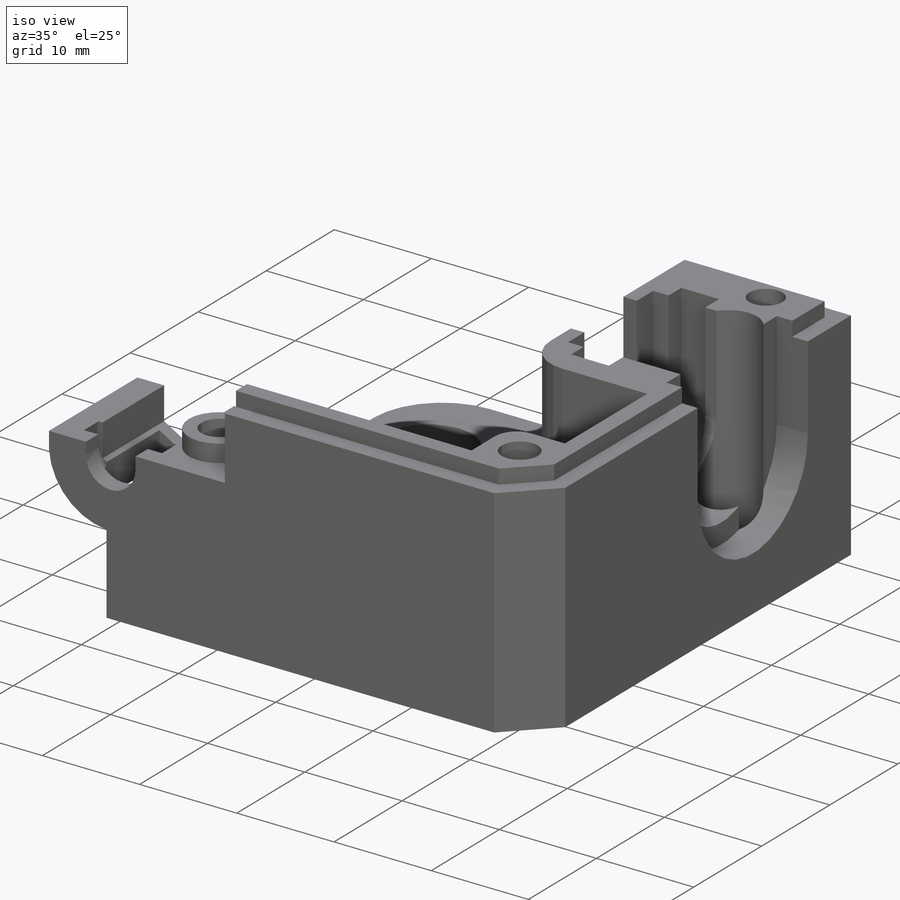
[diagram: iso view]
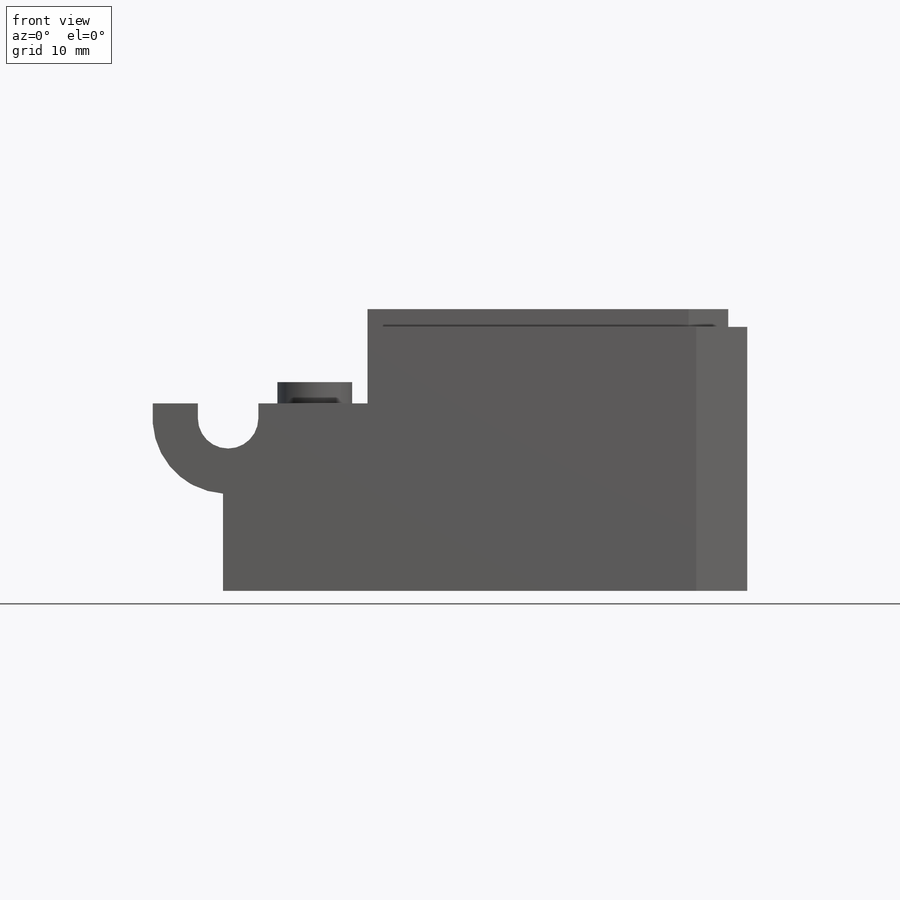
[diagram: front view]
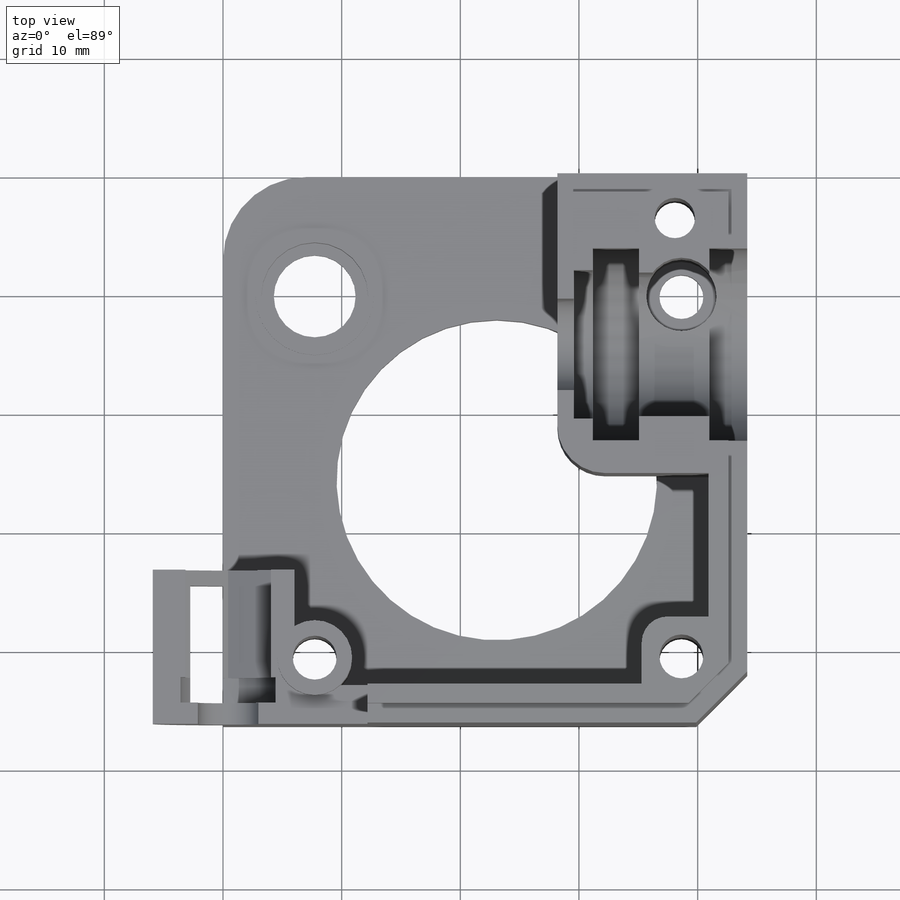
[diagram: top view]
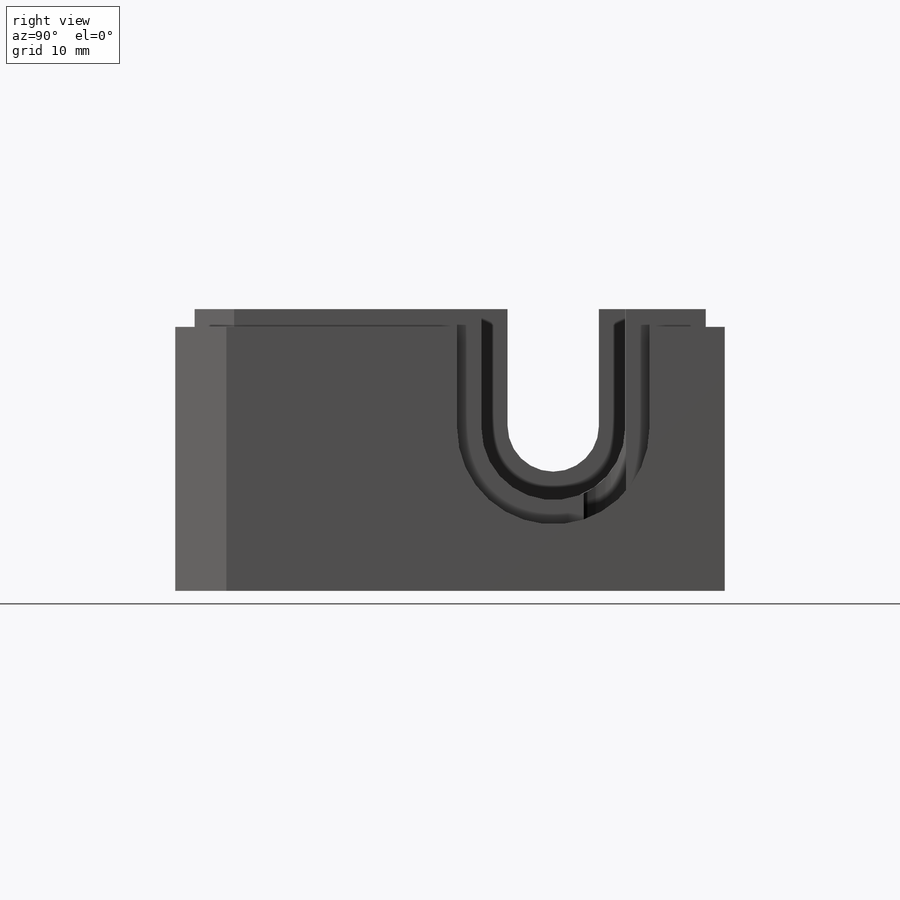
[diagram: right view]
SOLIDWORKS PART (.sldprt)
format: sldprt  version: not decoded by parser v0  size: 724,480 bytes
history: native  units: mm
features: sketch x26, cut_extrude x19, extrude x7, material x1, fillet x1 (+13 scaffold rows collapsed)
feature tree (67):
  scaffold x13  (default folders/planes/origin — collapsed)
  material  "Material <not specified>"
  sketch  "Sketch1"  dims[c1.D3=7.0mm c1.D4=27.0mm c1.D8=10.66mm c1.D1=46.3mm c1.D2=44.18mm c2.D4=~6.081118mm c2.D5=7.26mm c2.D6=9.57mm]
  extrude  "Boss-Extrude1"  Depth=3.6mm
  sketch  "Sketch2"  dims[D1=6.9mm D2=6.57mm D3=4.28mm]
  cut_extrude  "Cut-Extrude1"  Depth=1.6mm
  sketch  "Sketch3"  dims[D1=9.0mm]
  cut_extrude  "Cut-Extrude3"  Depth=2mm
  sketch  "Sketch4"  dims[D1=10.0mm]
  extrude  "Boss-Extrude2"  Depth=0.5mm
  sketch  "Sketch5"  dims[D1=25.3mm D2=16.0mm D3=3.25mm D4=3.25mm D5=32.0mm D6=8.9mm D7=8.9mm]
  extrude  "Boss-Extrude3"  Depth=20.15mm
  sketch  "Sketch6"  dims[D1=3.7mm D2=3.7mm D3=3.7mm]
  cut_extrude  "Cut-Extrude4"  [1 undecoded]
  sketch  "Sketch8"  dims[D1=16.2mm D2=6.35mm D3=5.6mm]
  cut_extrude  "Cut-Extrude5"  Depth=3.2mm
  sketch  "Sketch9"  dims[D1=12.1mm]
  cut_extrude  "Cut-Extrude6"  Depth=5.92mm
  sketch  "Sketch10"  dims[D1=3.7mm D2=8.25mm]
  cut_extrude  "Cut-Extrude7"  [1 undecoded]
  sketch  "Sketch12"  dims[D1=5.9mm]
  cut_extrude  "Cut-Extrude9"  Depth=20.6mm
  sketch  "Sketch13"
  cut_extrude  "Cut-Extrude10"  Depth=3.9mm
  sketch  "Sketch14"  dims[D1=7.7mm D2=13.7mm]
  cut_extrude  "Cut-Extrude11"  [1 undecoded]
  sketch  "Sketch16"
  cut_extrude  "Cut-Extrude12"  Depth=1.6mm
  fillet  "Fillet1"  Radius=4mm
  sketch  "Sketch17"  dims[D1=6.0mm D2=13.0mm]
  extrude  "Boss-Extrude4"  Depth=12.2mm
  sketch  "Sketch18"
  extrude  "Boss-Extrude5"  [1 undecoded]
  sketch  "Sketch20"  dims[D1=3.7mm D2=6.3mm]
  extrude  "Boss-Extrude6"  Depth=17.6mm
  sketch  "Sketch21"
  cut_extrude  "Cut-Extrude13"  Depth=17.6mm
  sketch  "Sketch22"  dims[D1=1.6mm D2=1.6mm]
  cut_extrude  "Cut-Extrude14"  Depth=1.5mm
  sketch  "Sketch24"  dims[D1=7.6mm D2=50.1mm]
  extrude  "Boss-Extrude7"  [1 undecoded]
  sketch  "Sketch25"  dims[D1=5.1mm D2=3.8mm D3=3.8mm]
  cut_extrude  "Cut-Extrude15"  [1 undecoded]
  sketch  "Sketch26"
  cut_extrude  "Cut-Extrude16"  [1 undecoded]
  sketch  "Sketch27"  dims[D1=7.2mm]
  cut_extrude  "Cut-Extrude17"  Depth=9.55mm
  sketch  "Sketch28"  dims[D1=8.4mm]
  cut_extrude  "Cut-Extrude18"  Depth=2.14mm
  sketch  "Sketch29"  dims[D1=9.9mm D2=1.8mm]
  cut_extrude  "Cut-Extrude21"  [1 undecoded]
  sketch  "Sketch30"  dims[D1=3.4mm D2=4.4mm D3=2.1mm]
  cut_extrude  "Cut-Extrude22"  [1 undecoded]
  sketch  "Sketch31"  dims[D1=5.0mm]
  cut_extrude  "Cut-Extrude23"  Depth=3mm
decode coverage: 39 of 53 modeling features carry decoded parameters
note: ~ marks probable driven/reference dimensions
note: 9 parameter values undecoded
summary: no parameter record found for 9 features
note: suppression state not decoded; provenance and decode notes live in map.json
